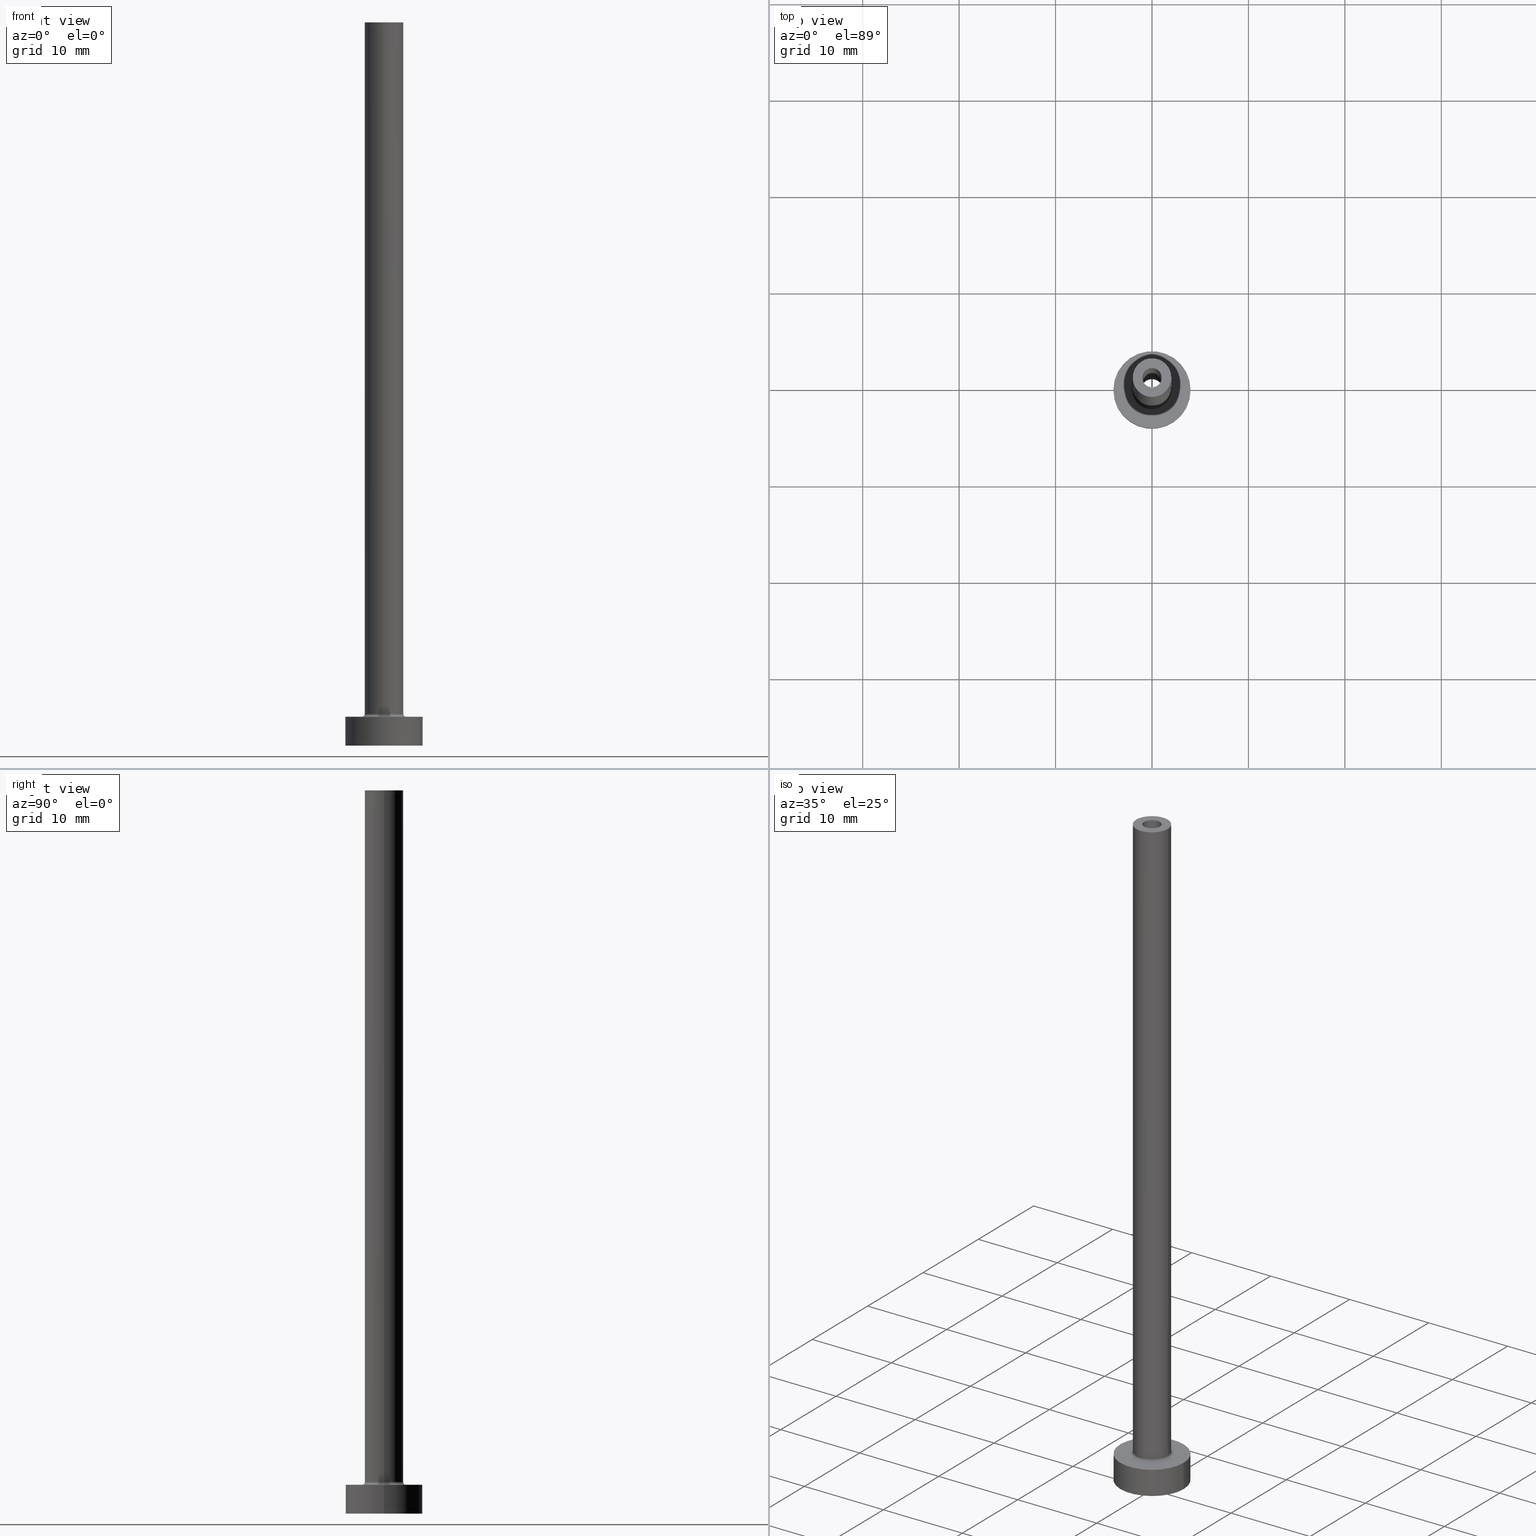
[diagram: canonical four-view strip — front | top / right | iso, engineering-drawing reading convention]
A machine part, canonical four-view strip (front | top / right | iso — engineering-drawing reading convention). The complete STEP part file that produces these views, byte-faithful:
ISO-10303-21;
HEADER;
FILE_DESCRIPTION (( 'STEP AP203' ),
    '1' );
FILE_NAME ('f873.STEP',
    '2023-02-13T12:51:36',
    ( '' ),
    ( '' ),
    'SwSTEP 2.0',
    'SolidWorks 2019',
    '' );
FILE_SCHEMA (( 'CONFIG_CONTROL_DESIGN' ));
ENDSEC;

DATA;
#1 = FACE_OUTER_BOUND ( 'NONE', #16, .T. ) ;
#2 = ORIENTED_EDGE ( 'NONE', *, *, #368, .T. ) ;
#3 = PLANE ( 'NONE',  #46 ) ;
#4 = CARTESIAN_POINT ( 'NONE',  ( 4.000000000000000000, 4.898587196589412829E-16, 3.000000000000000000 ) ) ;
#5 = DIRECTION ( 'NONE',  ( -0.000000000000000000, -0.000000000000000000, -1.000000000000000000 ) ) ;
#6 = APPROVAL ( #76, 'NEUR�EN�' ) ;
#7 = DIRECTION ( 'NONE',  ( 0.000000000000000000, -1.000000000000000000, 0.000000000000000000 ) ) ;
#8 = PRODUCT_DEFINITION_FORMATION_WITH_SPECIFIED_SOURCE ( 'LIBOVOLN�', '', #199, .NOT_KNOWN. ) ;
#9 = ORIENTED_EDGE ( 'NONE', *, *, #89, .T. ) ;
#10 = FACE_BOUND ( 'NONE', #97, .T. ) ;
#11 = CIRCLE ( 'NONE', #63, 4.000000000000000000 ) ;
#12 = ORIENTED_EDGE ( 'NONE', *, *, #433, .F. ) ;
#13 = ORIENTED_EDGE ( 'NONE', *, *, #433, .T. ) ;
#14 = CC_DESIGN_DATE_AND_TIME_ASSIGNMENT ( #183, #342, ( #138 ) ) ;
#15 = CARTESIAN_POINT ( 'NONE',  ( 0.000000000000000000, 0.000000000000000000, 75.00000000000001421 ) ) ;
#16 = EDGE_LOOP ( 'NONE', ( #318, #305, #113, #181 ) ) ;
#17 = EDGE_CURVE ( 'NONE', #239, #42, #237, .T. ) ;
#18 = AXIS2_PLACEMENT_3D ( 'NONE', #31, #402, #256 ) ;
#19 = FACE_OUTER_BOUND ( 'NONE', #240, .T. ) ;
#20 = CYLINDRICAL_SURFACE ( 'NONE', #129, 1.000000000000000000 ) ;
#21 = EDGE_LOOP ( 'NONE', ( #327, #115 ) ) ;
#22 = PERSON_AND_ORGANIZATION_ROLE ( 'design_supplier' ) ;
#23 = DIRECTION ( 'NONE',  ( 1.000000000000000000, 0.000000000000000000, 0.000000000000000000 ) ) ;
#24 = VERTEX_POINT ( 'NONE', #308 ) ;
#25 = ORIENTED_EDGE ( 'NONE', *, *, #110, .T. ) ;
#26 = CARTESIAN_POINT ( 'NONE',  ( -2.299999999999999822, 2.816687638038912056E-16, 2.999999999999998668 ) ) ;
#27 = CIRCLE ( 'NONE', #299, 4.000000000000000000 ) ;
#28 = FACE_OUTER_BOUND ( 'NONE', #379, .T. ) ;
#29 = ORIENTED_EDGE ( 'NONE', *, *, #30, .T. ) ;
#30 = EDGE_CURVE ( 'NONE', #326, #267, #80, .T. ) ;
#31 = CARTESIAN_POINT ( 'NONE',  ( 0.000000000000000000, 0.000000000000000000, 75.00000000000001421 ) ) ;
#32 = EDGE_CURVE ( 'NONE', #319, #88, #182, .T. ) ;
#33 = VECTOR ( 'NONE', #284, 1000.000000000000000 ) ;
#34 = CIRCLE ( 'NONE', #428, 1.000000000000000000 ) ;
#35 = CYLINDRICAL_SURFACE ( 'NONE', #344, 4.000000000000000000 ) ;
#36 = DIRECTION ( 'NONE',  ( 1.000000000000000000, 0.000000000000000000, -0.000000000000000000 ) ) ;
#37 = ADVANCED_FACE ( 'NONE', ( #410 ), #20, .F. ) ;
#38 = CIRCLE ( 'NONE', #374, 2.000000000000000000 ) ;
#39 = CARTESIAN_POINT ( 'NONE',  ( 1.149999999999999911, 1.408343819019456028E-16, 0.000000000000000000 ) ) ;
#40 = FACE_OUTER_BOUND ( 'NONE', #286, .T. ) ;
#41 = EDGE_CURVE ( 'NONE', #145, #411, #244, .T. ) ;
#42 = VERTEX_POINT ( 'NONE', #257 ) ;
#43 = DIRECTION ( 'NONE',  ( 1.000000000000000000, 0.000000000000000000, 0.000000000000000000 ) ) ;
#44 = DATE_AND_TIME ( #114, #187 ) ;
#45 = CARTESIAN_POINT ( 'NONE',  ( 0.000000000000000000, 0.000000000000000000, 40.00000000000000711 ) ) ;
#46 = AXIS2_PLACEMENT_3D ( 'NONE', #401, #71, #36 ) ;
#47 = CIRCLE ( 'NONE', #265, 1.149999999999999911 ) ;
#48 = DIRECTION ( 'NONE',  ( 0.000000000000000000, 0.000000000000000000, 1.000000000000000000 ) ) ;
#49 = PRODUCT_DEFINITION_SHAPE ( 'NONE', 'NONE',  #138 ) ;
#50 = DATE_TIME_ROLE ( 'classification_date' ) ;
#51 = ORIENTED_EDGE ( 'NONE', *, *, #53, .T. ) ;
#52 = APPROVAL_PERSON_ORGANIZATION ( #148, #372, #349 ) ;
#53 = EDGE_CURVE ( 'NONE', #367, #279, #94, .T. ) ;
#54 = ORIENTED_EDGE ( 'NONE', *, *, #272, .T. ) ;
#55 = DIRECTION ( 'NONE',  ( 0.000000000000000000, 0.000000000000000000, -1.000000000000000000 ) ) ;
#56 = ORIENTED_EDGE ( 'NONE', *, *, #356, .T. ) ;
#57 = ADVANCED_FACE ( 'NONE', ( #1 ), #70, .T. ) ;
#58 = LOCAL_TIME ( 13, 51, 36.00000000000000000, #117 ) ;
#59 = FACE_OUTER_BOUND ( 'NONE', #74, .T. ) ;
#60 = FACE_BOUND ( 'NONE', #362, .T. ) ;
#61 = APPLICATION_PROTOCOL_DEFINITION ( 'international standard', 'config_control_design', 1994, #164 ) ;
#62 = CARTESIAN_POINT ( 'NONE',  ( 0.000000000000000000, 0.000000000000000000, 40.00000000000000711 ) ) ;
#63 = AXIS2_PLACEMENT_3D ( 'NONE', #358, #459, #132 ) ;
#64 = CARTESIAN_POINT ( 'NONE',  ( 0.000000000000000000, 0.000000000000000000, 3.299999999999997158 ) ) ;
#65 = DIRECTION ( 'NONE',  ( -0.000000000000000000, -0.000000000000000000, -1.000000000000000000 ) ) ;
#66 = CARTESIAN_POINT ( 'NONE',  ( 0.000000000000000000, 0.000000000000000000, 43.25269119345811930 ) ) ;
#67 = ORIENTED_EDGE ( 'NONE', *, *, #272, .F. ) ;
#68 = PERSON_AND_ORGANIZATION_ROLE ( 'classification_officer' ) ;
#69 = DIRECTION ( 'NONE',  ( 0.000000000000000000, 0.000000000000000000, 1.000000000000000000 ) ) ;
#70 = CYLINDRICAL_SURFACE ( 'NONE', #160, 4.000000000000000000 ) ;
#71 = DIRECTION ( 'NONE',  ( 0.000000000000000000, 0.000000000000000000, 1.000000000000000000 ) ) ;
#72 = PERSON_AND_ORGANIZATION ( #345, #263 ) ;
#73 = DIRECTION ( 'NONE',  ( 1.000000000000000000, 0.000000000000000000, 0.000000000000000000 ) ) ;
#74 = EDGE_LOOP ( 'NONE', ( #315, #13, #276, #448 ) ) ;
#75 = DIRECTION ( 'NONE',  ( 1.000000000000000000, 0.000000000000000000, -0.000000000000000000 ) ) ;
#76 = APPROVAL_STATUS ( 'not_yet_approved' ) ;
#77 = EDGE_CURVE ( 'NONE', #411, #145, #38, .T. ) ;
#78 = CC_DESIGN_APPROVAL ( #79, ( #138 ) ) ;
#79 = APPROVAL ( #228, 'NEUR�EN�' ) ;
#80 = LINE ( 'NONE', #406, #357 ) ;
#81 = VERTEX_POINT ( 'NONE', #434 ) ;
#82 = CALENDAR_DATE ( 2023, 13, 2 ) ;
#83 = AXIS2_PLACEMENT_3D ( 'NONE', #423, #95, #246 ) ;
#84 = AXIS2_PLACEMENT_3D ( 'NONE', #387, #202, #206 ) ;
#85 = DIRECTION ( 'NONE',  ( 0.000000000000000000, 0.000000000000000000, -1.000000000000000000 ) ) ;
#86 = CALENDAR_DATE ( 2023, 13, 2 ) ;
#87 = DIRECTION ( 'NONE',  ( 0.000000000000000000, 0.000000000000000000, -1.000000000000000000 ) ) ;
#88 = VERTEX_POINT ( 'NONE', #108 ) ;
#89 = EDGE_CURVE ( 'NONE', #214, #185, #220, .T. ) ;
#90 = ORIENTED_EDGE ( 'NONE', *, *, #192, .T. ) ;
#91 = ORIENTED_EDGE ( 'NONE', *, *, #41, .T. ) ;
#92 = CARTESIAN_POINT ( 'NONE',  ( 4.000000000000000000, 4.898587196589412829E-16, 0.000000000000000000 ) ) ;
#93 = CARTESIAN_POINT ( 'NONE',  ( -1.149999999999999911, 0.000000000000000000, 40.00000000000000711 ) ) ;
#94 = CIRCLE ( 'NONE', #161, 2.299999999999999822 ) ;
#95 = DIRECTION ( 'NONE',  ( -0.000000000000000000, -0.000000000000000000, -1.000000000000000000 ) ) ;
#96 = CC_DESIGN_PERSON_AND_ORGANIZATION_ASSIGNMENT ( #190, #22, ( #8 ) ) ;
#97 = EDGE_LOOP ( 'NONE', ( #169, #277 ) ) ;
#98 = DATE_AND_TIME ( #86, #58 ) ;
#99 = AXIS2_PLACEMENT_3D ( 'NONE', #111, #404, #75 ) ;
#100 = DIRECTION ( 'NONE',  ( 1.000000000000000000, 0.000000000000000000, 0.000000000000000000 ) ) ;
#101 = VERTEX_POINT ( 'NONE', #39 ) ;
#102 = CYLINDRICAL_SURFACE ( 'NONE', #157, 2.000000000000000000 ) ;
#103 = EDGE_LOOP ( 'NONE', ( #156, #25, #135, #159 ) ) ;
#104 = EDGE_CURVE ( 'NONE', #145, #367, #287, .T. ) ;
#105 = DIRECTION ( 'NONE',  ( 1.224646799147353207E-16, 1.000000000000000000, -0.000000000000000000 ) ) ;
#106 = CARTESIAN_POINT ( 'NONE',  ( 2.000000000000000000, 2.449293598294706414E-16, 3.299999999999997158 ) ) ;
#107 = CIRCLE ( 'NONE', #460, 2.000000000000000000 ) ;
#108 = CARTESIAN_POINT ( 'NONE',  ( 1.149999999999999911, 1.408343819019456028E-16, 40.00000000000000711 ) ) ;
#109 = DIRECTION ( 'NONE',  ( 0.000000000000000000, 0.000000000000000000, 1.000000000000000000 ) ) ;
#110 = EDGE_CURVE ( 'NONE', #81, #341, #300, .T. ) ;
#111 = CARTESIAN_POINT ( 'NONE',  ( 0.000000000000000000, 0.000000000000000000, 0.000000000000000000 ) ) ;
#112 = CARTESIAN_POINT ( 'NONE',  ( 0.000000000000000000, 0.000000000000000000, 3.000000000000000000 ) ) ;
#113 = ORIENTED_EDGE ( 'NONE', *, *, #184, .T. ) ;
#114 = CALENDAR_DATE ( 2023, 13, 2 ) ;
#115 = ORIENTED_EDGE ( 'NONE', *, *, #359, .F. ) ;
#116 = DIRECTION ( 'NONE',  ( -0.000000000000000000, -0.000000000000000000, -1.000000000000000000 ) ) ;
#117 = COORDINATED_UNIVERSAL_TIME_OFFSET ( 1, 0, .AHEAD. ) ;
#118 = ORIENTED_EDGE ( 'NONE', *, *, #310, .T. ) ;
#119 = DIRECTION ( 'NONE',  ( 1.000000000000000000, 0.000000000000000000, 0.000000000000000000 ) ) ;
#120 = CC_DESIGN_PERSON_AND_ORGANIZATION_ASSIGNMENT ( #72, #442, ( #138 ) ) ;
#121 = PERSON_AND_ORGANIZATION ( #345, #263 ) ;
#122 = CYLINDRICAL_SURFACE ( 'NONE', #222, 1.149999999999999911 ) ;
#123 = CC_DESIGN_APPROVAL ( #6, ( #8 ) ) ;
#124 = EDGE_CURVE ( 'NONE', #456, #101, #47, .T. ) ;
#125 = AXIS2_PLACEMENT_3D ( 'NONE', #320, #173, #211 ) ;
#126 = CARTESIAN_POINT ( 'NONE',  ( -1.149999999999999911, 0.000000000000000000, 43.25269119345811930 ) ) ;
#127 = PLANE ( 'NONE',  #352 ) ;
#128 = LINE ( 'NONE', #451, #376 ) ;
#129 = AXIS2_PLACEMENT_3D ( 'NONE', #15, #413, #432 ) ;
#130 = CIRCLE ( 'NONE', #232, 2.299999999999999822 ) ;
#131 = FACE_OUTER_BOUND ( 'NONE', #409, .T. ) ;
#132 = DIRECTION ( 'NONE',  ( 1.000000000000000000, 0.000000000000000000, 0.000000000000000000 ) ) ;
#133 = VECTOR ( 'NONE', #248, 1000.000000000000000 ) ;
#134 = CARTESIAN_POINT ( 'NONE',  ( 0.000000000000000000, 0.000000000000000000, 0.000000000000000000 ) ) ;
#135 = ORIENTED_EDGE ( 'NONE', *, *, #192, .F. ) ;
#136 = ADVANCED_FACE ( 'NONE', ( #253 ), #395, .F. ) ;
#137 = PERSON_AND_ORGANIZATION ( #345, #263 ) ;
#138 = PRODUCT_DEFINITION ( 'NEZN�M�', '', #8, #393 ) ;
#139 = CARTESIAN_POINT ( 'NONE',  ( 0.000000000000000000, 0.000000000000000000, 3.299999999999997158 ) ) ;
#140 = EDGE_CURVE ( 'NONE', #239, #209, #288, .T. ) ;
#141 = AXIS2_PLACEMENT_3D ( 'NONE', #62, #443, #73 ) ;
#142 = DIRECTION ( 'NONE',  ( 0.000000000000000000, 0.000000000000000000, -1.000000000000000000 ) ) ;
#143 = CIRCLE ( 'NONE', #441, 1.000000000000000000 ) ;
#144 = DIRECTION ( 'NONE',  ( 1.000000000000000000, 0.000000000000000000, 0.000000000000000000 ) ) ;
#145 = VERTEX_POINT ( 'NONE', #106 ) ;
#146 = APPLICATION_CONTEXT ( 'configuration controlled 3d designs of mechanical parts and assemblies' ) ;
#147 = AXIS2_PLACEMENT_3D ( 'NONE', #309, #109, #234 ) ;
#148 = PERSON_AND_ORGANIZATION ( #345, #263 ) ;
#149 = ORIENTED_EDGE ( 'NONE', *, *, #450, .T. ) ;
#150 = ORIENTED_EDGE ( 'NONE', *, *, #104, .T. ) ;
#151 = ORIENTED_EDGE ( 'NONE', *, *, #317, .F. ) ;
#152 = ADVANCED_FACE ( 'NONE', ( #425 ), #235, .F. ) ;
#153 = COORDINATED_UNIVERSAL_TIME_OFFSET ( 1, 0, .AHEAD. ) ;
#154 = AXIS2_PLACEMENT_3D ( 'NONE', #221, #337, #144 ) ;
#155 = CARTESIAN_POINT ( 'NONE',  ( 0.000000000000000000, 0.000000000000000000, 75.00000000000001421 ) ) ;
#156 = ORIENTED_EDGE ( 'NONE', *, *, #179, .T. ) ;
#157 = AXIS2_PLACEMENT_3D ( 'NONE', #396, #353, #281 ) ;
#158 = CC_DESIGN_PERSON_AND_ORGANIZATION_ASSIGNMENT ( #137, #296, ( #199 ) ) ;
#159 = ORIENTED_EDGE ( 'NONE', *, *, #30, .F. ) ;
#160 = AXIS2_PLACEMENT_3D ( 'NONE', #177, #330, #333 ) ;
#161 = AXIS2_PLACEMENT_3D ( 'NONE', #400, #294, #334 ) ;
#162 = SECURITY_CLASSIFICATION_LEVEL ( 'unclassified' ) ;
#163 = ADVANCED_BREP_SHAPE_REPRESENTATION ( 'f873', ( #348, #258 ), #435 ) ;
#164 = APPLICATION_CONTEXT ( 'configuration controlled 3d designs of mechanical parts and assemblies' ) ;
#165 = CIRCLE ( 'NONE', #154, 1.000000000000000000 ) ;
#166 = CARTESIAN_POINT ( 'NONE',  ( -1.000000000000000000, 0.000000000000000000, 75.00000000000001421 ) ) ;
#167 = DIRECTION ( 'NONE',  ( -0.000000000000000000, -0.000000000000000000, -1.000000000000000000 ) ) ;
#168 = CLOSED_SHELL ( 'NONE', ( #407, #136, #219, #338, #57, #225, #340, #255, #250, #297, #152, #385, #440, #37 ) ) ;
#169 = ORIENTED_EDGE ( 'NONE', *, *, #124, .F. ) ;
#170 = CARTESIAN_POINT ( 'NONE',  ( 1.000000000000000000, 1.224646799147353207E-16, 75.00000000000001421 ) ) ;
#171 = CARTESIAN_POINT ( 'NONE',  ( 0.000000000000000000, 0.000000000000000000, 3.000000000000000000 ) ) ;
#172 = CARTESIAN_POINT ( 'NONE',  ( 0.000000000000000000, 0.000000000000000000, 75.00000000000001421 ) ) ;
#173 = DIRECTION ( 'NONE',  ( 0.000000000000000000, 0.000000000000000000, 1.000000000000000000 ) ) ;
#174 =( NAMED_UNIT ( * ) PLANE_ANGLE_UNIT ( ) SI_UNIT ( $, .RADIAN. ) );
#175 = CC_DESIGN_APPROVAL ( #372, ( #273 ) ) ;
#176 = DIRECTION ( 'NONE',  ( 0.000000000000000000, 0.000000000000000000, 1.000000000000000000 ) ) ;
#177 = CARTESIAN_POINT ( 'NONE',  ( 0.000000000000000000, 0.000000000000000000, 3.000000000000000000 ) ) ;
#178 = APPROVAL_DATE_TIME ( #264, #79 ) ;
#179 = EDGE_CURVE ( 'NONE', #326, #81, #143, .T. ) ;
#180 = AXIS2_PLACEMENT_3D ( 'NONE', #366, #105, #208 ) ;
#181 = ORIENTED_EDGE ( 'NONE', *, *, #455, .F. ) ;
#182 = CIRCLE ( 'NONE', #408, 1.149999999999999911 ) ;
#183 = DATE_AND_TIME ( #268, #370 ) ;
#184 = EDGE_CURVE ( 'NONE', #209, #24, #27, .T. ) ;
#185 = VERTEX_POINT ( 'NONE', #416 ) ;
#186 = ORIENTED_EDGE ( 'NONE', *, *, #77, .T. ) ;
#187 = LOCAL_TIME ( 13, 51, 36.00000000000000000, #449 ) ;
#188 = DIRECTION ( 'NONE',  ( 0.000000000000000000, 0.000000000000000000, 1.000000000000000000 ) ) ;
#189 = ORIENTED_EDGE ( 'NONE', *, *, #140, .F. ) ;
#190 = PERSON_AND_ORGANIZATION ( #345, #263 ) ;
#191 = EDGE_LOOP ( 'NONE', ( #54, #205 ) ) ;
#192 = EDGE_CURVE ( 'NONE', #267, #341, #241, .T. ) ;
#193 = APPROVAL_ROLE ( '' ) ;
#194 = ORIENTED_EDGE ( 'NONE', *, *, #124, .T. ) ;
#195 = ORIENTED_EDGE ( 'NONE', *, *, #204, .T. ) ;
#196 = DATE_AND_TIME ( #82, #210 ) ;
#197 = AXIS2_PLACEMENT_3D ( 'NONE', #421, #167, #461 ) ;
#198 = ORIENTED_EDGE ( 'NONE', *, *, #110, .F. ) ;
#199 = PRODUCT ( 'f873', 'f873', '', ( #216 ) ) ;
#200 = PERSON_AND_ORGANIZATION ( #345, #263 ) ;
#201 = CARTESIAN_POINT ( 'NONE',  ( -2.000000000000000000, 0.000000000000000000, 75.00000000000001421 ) ) ;
#202 = DIRECTION ( 'NONE',  ( 0.000000000000000000, 0.000000000000000000, 1.000000000000000000 ) ) ;
#203 = DIRECTION ( 'NONE',  ( 0.000000000000000000, 0.000000000000000000, 1.000000000000000000 ) ) ;
#204 = EDGE_CURVE ( 'NONE', #341, #267, #34, .T. ) ;
#205 = ORIENTED_EDGE ( 'NONE', *, *, #17, .T. ) ;
#206 = DIRECTION ( 'NONE',  ( 1.000000000000000000, 0.000000000000000000, 0.000000000000000000 ) ) ;
#207 = DIRECTION ( 'NONE',  ( 1.000000000000000000, 0.000000000000000000, -0.000000000000000000 ) ) ;
#208 = DIRECTION ( 'NONE',  ( -1.000000000000000000, 1.224646799147353207E-16, 0.000000000000000000 ) ) ;
#209 = VERTEX_POINT ( 'NONE', #92 ) ;
#210 = LOCAL_TIME ( 13, 51, 36.00000000000000000, #153 ) ;
#211 = DIRECTION ( 'NONE',  ( 1.000000000000000000, 0.000000000000000000, 0.000000000000000000 ) ) ;
#212 = CARTESIAN_POINT ( 'NONE',  ( 0.000000000000000000, 0.000000000000000000, 40.00000000000000711 ) ) ;
#213 = DIRECTION ( 'NONE',  ( 1.000000000000000000, 0.000000000000000000, 0.000000000000000000 ) ) ;
#214 = VERTEX_POINT ( 'NONE', #389 ) ;
#215 = DIRECTION ( 'NONE',  ( 0.000000000000000000, 0.000000000000000000, -1.000000000000000000 ) ) ;
#216 = MECHANICAL_CONTEXT ( 'NONE', #164, 'mechanical' ) ;
#217 = VECTOR ( 'NONE', #55, 1000.000000000000000 ) ;
#218 =( NAMED_UNIT ( * ) SI_UNIT ( $, .STERADIAN. ) SOLID_ANGLE_UNIT ( ) );
#219 = ADVANCED_FACE ( 'NONE', ( #59 ), #392, .F. ) ;
#220 = CIRCLE ( 'NONE', #18, 2.000000000000000000 ) ;
#221 = CARTESIAN_POINT ( 'NONE',  ( 0.000000000000000000, 0.000000000000000000, 75.00000000000001421 ) ) ;
#222 = AXIS2_PLACEMENT_3D ( 'NONE', #446, #85, #236 ) ;
#223 = AXIS2_PLACEMENT_3D ( 'NONE', #245, #203, #207 ) ;
#224 = DIRECTION ( 'NONE',  ( 0.000000000000000000, 0.000000000000000000, 1.000000000000000000 ) ) ;
#225 = ADVANCED_FACE ( 'NONE', ( #40 ), #35, .T. ) ;
#226 = CALENDAR_DATE ( 2023, 13, 2 ) ;
#227 = ORIENTED_EDGE ( 'NONE', *, *, #89, .F. ) ;
#228 = APPROVAL_STATUS ( 'not_yet_approved' ) ;
#229 = DIRECTION ( 'NONE',  ( 0.000000000000000000, 0.000000000000000000, -1.000000000000000000 ) ) ;
#230 = ORIENTED_EDGE ( 'NONE', *, *, #359, .T. ) ;
#231 = APPROVAL_DATE_TIME ( #196, #6 ) ;
#232 = AXIS2_PLACEMENT_3D ( 'NONE', #238, #116, #275 ) ;
#233 = ORIENTED_EDGE ( 'NONE', *, *, #397, .T. ) ;
#234 = DIRECTION ( 'NONE',  ( 1.000000000000000000, 0.000000000000000000, 0.000000000000000000 ) ) ;
#235 = TOROIDAL_SURFACE ( 'NONE', #147, 2.299999999999999822, 0.2999999999999999889 ) ;
#236 = DIRECTION ( 'NONE',  ( -1.000000000000000000, 0.000000000000000000, 0.000000000000000000 ) ) ;
#237 = CIRCLE ( 'NONE', #302, 4.000000000000000000 ) ;
#238 = CARTESIAN_POINT ( 'NONE',  ( 0.000000000000000000, 0.000000000000000000, 3.000000000000000000 ) ) ;
#239 = VERTEX_POINT ( 'NONE', #4 ) ;
#240 = EDGE_LOOP ( 'NONE', ( #417, #56, #270, #194 ) ) ;
#241 = CIRCLE ( 'NONE', #84, 1.000000000000000000 ) ;
#242 = FACE_OUTER_BOUND ( 'NONE', #103, .T. ) ;
#243 = ORIENTED_EDGE ( 'NONE', *, *, #414, .T. ) ;
#244 = CIRCLE ( 'NONE', #365, 2.000000000000000000 ) ;
#245 = CARTESIAN_POINT ( 'NONE',  ( 0.000000000000000000, 0.000000000000000000, 75.00000000000001421 ) ) ;
#246 = DIRECTION ( 'NONE',  ( -1.000000000000000000, 0.000000000000000000, 0.000000000000000000 ) ) ;
#247 = DIRECTION ( 'NONE',  ( 1.000000000000000000, 0.000000000000000000, -0.000000000000000000 ) ) ;
#248 = DIRECTION ( 'NONE',  ( 0.000000000000000000, 0.000000000000000000, -1.000000000000000000 ) ) ;
#249 = ORIENTED_EDGE ( 'NONE', *, *, #368, .F. ) ;
#250 = ADVANCED_FACE ( 'NONE', ( #131 ), #102, .T. ) ;
#251 = AXIS2_PLACEMENT_3D ( 'NONE', #64, #373, #335 ) ;
#252 = LINE ( 'NONE', #430, #295 ) ;
#253 = FACE_OUTER_BOUND ( 'NONE', #266, .T. ) ;
#254 = APPROVAL_DATE_TIME ( #98, #372 ) ;
#255 = ADVANCED_FACE ( 'NONE', ( #10, #301 ), #339, .F. ) ;
#256 = DIRECTION ( 'NONE',  ( 1.000000000000000000, 0.000000000000000000, 0.000000000000000000 ) ) ;
#257 = CARTESIAN_POINT ( 'NONE',  ( -4.000000000000000000, 0.000000000000000000, 3.000000000000000000 ) ) ;
#258 = AXIS2_PLACEMENT_3D ( 'NONE', #292, #176, #213 ) ;
#259 = DIRECTION ( 'NONE',  ( 0.000000000000000000, 0.000000000000000000, 1.000000000000000000 ) ) ;
#260 = DIRECTION ( 'NONE',  ( 1.000000000000000000, 0.000000000000000000, 0.000000000000000000 ) ) ;
#261 = APPLICATION_PROTOCOL_DEFINITION ( 'international standard', 'config_control_design', 1994, #146 ) ;
#262 = APPROVAL_ROLE ( '' ) ;
#263 = ORGANIZATION ( 'NEUR�EN�', 'NEUR�EN�', '' ) ;
#264 = DATE_AND_TIME ( #226, #298 ) ;
#265 = AXIS2_PLACEMENT_3D ( 'NONE', #134, #457, #100 ) ;
#266 = EDGE_LOOP ( 'NONE', ( #444, #243, #149, #151 ) ) ;
#267 = VERTEX_POINT ( 'NONE', #322 ) ;
#268 = CALENDAR_DATE ( 2023, 13, 2 ) ;
#269 = EDGE_LOOP ( 'NONE', ( #227, #118, #91, #249 ) ) ;
#270 = ORIENTED_EDGE ( 'NONE', *, *, #317, .T. ) ;
#271 = DIRECTION ( 'NONE',  ( 1.000000000000000000, 0.000000000000000000, 0.000000000000000000 ) ) ;
#272 = EDGE_CURVE ( 'NONE', #42, #239, #282, .T. ) ;
#273 = SECURITY_CLASSIFICATION ( '', '', #162 ) ;
#274 = CC_DESIGN_PERSON_AND_ORGANIZATION_ASSIGNMENT ( #200, #355, ( #8 ) ) ;
#275 = DIRECTION ( 'NONE',  ( 1.000000000000000000, 0.000000000000000000, 0.000000000000000000 ) ) ;
#276 = ORIENTED_EDGE ( 'NONE', *, *, #53, .F. ) ;
#277 = ORIENTED_EDGE ( 'NONE', *, *, #450, .F. ) ;
#278 = LINE ( 'NONE', #201, #439 ) ;
#279 = VERTEX_POINT ( 'NONE', #26 ) ;
#280 = DIRECTION ( 'NONE',  ( 0.000000000000000000, 0.000000000000000000, 1.000000000000000000 ) ) ;
#281 = DIRECTION ( 'NONE',  ( -1.000000000000000000, 0.000000000000000000, 0.000000000000000000 ) ) ;
#282 = CIRCLE ( 'NONE', #125, 4.000000000000000000 ) ;
#283 = CARTESIAN_POINT ( 'NONE',  ( 0.000000000000000000, 0.000000000000000000, 40.00000000000000711 ) ) ;
#284 = DIRECTION ( 'NONE',  ( 0.000000000000000000, 0.000000000000000000, -1.000000000000000000 ) ) ;
#285 = CARTESIAN_POINT ( 'NONE',  ( 1.149999999999999911, 1.408343819019456028E-16, 43.25269119345811930 ) ) ;
#286 = EDGE_LOOP ( 'NONE', ( #189, #67, #332, #453 ) ) ;
#287 = CIRCLE ( 'NONE', #403, 0.2999999999999999334 ) ;
#288 = LINE ( 'NONE', #291, #436 ) ;
#289 = CYLINDRICAL_SURFACE ( 'NONE', #83, 2.000000000000000000 ) ;
#290 = EDGE_LOOP ( 'NONE', ( #90, #195 ) ) ;
#291 = CARTESIAN_POINT ( 'NONE',  ( 4.000000000000000000, 4.898587196589412829E-16, 3.000000000000000000 ) ) ;
#292 = CARTESIAN_POINT ( 'NONE',  ( 0.000000000000000000, 0.000000000000000000, 0.000000000000000000 ) ) ;
#293 = ORIENTED_EDGE ( 'NONE', *, *, #41, .F. ) ;
#294 = DIRECTION ( 'NONE',  ( -0.000000000000000000, -0.000000000000000000, -1.000000000000000000 ) ) ;
#295 = VECTOR ( 'NONE', #65, 1000.000000000000000 ) ;
#296 = PERSON_AND_ORGANIZATION_ROLE ( 'design_owner' ) ;
#297 = ADVANCED_FACE ( 'NONE', ( #398, #390 ), #329, .T. ) ;
#298 = LOCAL_TIME ( 13, 51, 36.00000000000000000, #375 ) ;
#299 = AXIS2_PLACEMENT_3D ( 'NONE', #351, #224, #271 ) ;
#300 = LINE ( 'NONE', #170, #133 ) ;
#301 = FACE_OUTER_BOUND ( 'NONE', #427, .T. ) ;
#302 = AXIS2_PLACEMENT_3D ( 'NONE', #112, #382, #43 ) ;
#303 = PERSON_AND_ORGANIZATION ( #345, #263 ) ;
#304 = EDGE_CURVE ( 'NONE', #24, #209, #11, .T. ) ;
#305 = ORIENTED_EDGE ( 'NONE', *, *, #140, .T. ) ;
#306 = APPROVAL_PERSON_ORGANIZATION ( #303, #79, #262 ) ;
#307 = PERSON_AND_ORGANIZATION ( #345, #263 ) ;
#308 = CARTESIAN_POINT ( 'NONE',  ( -4.000000000000000000, 0.000000000000000000, 0.000000000000000000 ) ) ;
#309 = CARTESIAN_POINT ( 'NONE',  ( 0.000000000000000000, 0.000000000000000000, 3.299999999999997158 ) ) ;
#310 = EDGE_CURVE ( 'NONE', #214, #145, #128, .T. ) ;
#311 = ORIENTED_EDGE ( 'NONE', *, *, #397, .F. ) ;
#312 = SHAPE_DEFINITION_REPRESENTATION ( #49, #163 ) ;
#313 = ORIENTED_EDGE ( 'NONE', *, *, #310, .F. ) ;
#314 = CYLINDRICAL_SURFACE ( 'NONE', #343, 1.000000000000000000 ) ;
#315 = ORIENTED_EDGE ( 'NONE', *, *, #77, .F. ) ;
#316 = CARTESIAN_POINT ( 'NONE',  ( 2.299999999999999822, 0.000000000000000000, 2.999999999999998668 ) ) ;
#317 = EDGE_CURVE ( 'NONE', #319, #456, #420, .T. ) ;
#318 = ORIENTED_EDGE ( 'NONE', *, *, #17, .F. ) ;
#319 = VERTEX_POINT ( 'NONE', #93 ) ;
#320 = CARTESIAN_POINT ( 'NONE',  ( 0.000000000000000000, 0.000000000000000000, 3.000000000000000000 ) ) ;
#321 = AXIS2_PLACEMENT_3D ( 'NONE', #66, #215, #437 ) ;
#322 = CARTESIAN_POINT ( 'NONE',  ( -1.000000000000000000, 0.000000000000000000, 40.00000000000000711 ) ) ;
#323 = FACE_OUTER_BOUND ( 'NONE', #269, .T. ) ;
#324 = CARTESIAN_POINT ( 'NONE',  ( -1.149999999999999911, 0.000000000000000000, 0.000000000000000000 ) ) ;
#325 = FACE_OUTER_BOUND ( 'NONE', #191, .T. ) ;
#326 = VERTEX_POINT ( 'NONE', #166 ) ;
#327 = ORIENTED_EDGE ( 'NONE', *, *, #179, .F. ) ;
#328 = DIRECTION ( 'NONE',  ( -0.000000000000000000, -0.000000000000000000, -1.000000000000000000 ) ) ;
#329 = PLANE ( 'NONE',  #223 ) ;
#330 = DIRECTION ( 'NONE',  ( -0.000000000000000000, -0.000000000000000000, -1.000000000000000000 ) ) ;
#331 = CC_DESIGN_SECURITY_CLASSIFICATION ( #273, ( #8 ) ) ;
#332 = ORIENTED_EDGE ( 'NONE', *, *, #455, .T. ) ;
#333 = DIRECTION ( 'NONE',  ( -1.000000000000000000, 0.000000000000000000, 0.000000000000000000 ) ) ;
#334 = DIRECTION ( 'NONE',  ( 1.000000000000000000, 0.000000000000000000, 0.000000000000000000 ) ) ;
#335 = DIRECTION ( 'NONE',  ( 1.000000000000000000, 0.000000000000000000, 0.000000000000000000 ) ) ;
#336 = CARTESIAN_POINT ( 'NONE',  ( 0.000000000000000000, 0.000000000000000000, 3.299999999999997158 ) ) ;
#337 = DIRECTION ( 'NONE',  ( 0.000000000000000000, 0.000000000000000000, 1.000000000000000000 ) ) ;
#338 = ADVANCED_FACE ( 'NONE', ( #323 ), #289, .T. ) ;
#339 = PLANE ( 'NONE',  #99 ) ;
#340 = ADVANCED_FACE ( 'NONE', ( #60, #325 ), #3, .T. ) ;
#341 = VERTEX_POINT ( 'NONE', #454 ) ;
#342 = DATE_TIME_ROLE ( 'creation_date' ) ;
#343 = AXIS2_PLACEMENT_3D ( 'NONE', #415, #87, #418 ) ;
#344 = AXIS2_PLACEMENT_3D ( 'NONE', #171, #328, #458 ) ;
#345 = PERSON ( 'NEUR�EN�', 'NEUR�EN�', 'NEUR�EN�', ('NEUR�EN�'), ('NEUR�EN�'), ('NEUR�EN�') ) ;
#346 = DIRECTION ( 'NONE',  ( 1.000000000000000000, 0.000000000000000000, 0.000000000000000000 ) ) ;
#347 = ORIENTED_EDGE ( 'NONE', *, *, #204, .F. ) ;
#348 = MANIFOLD_SOLID_BREP ( 'Odebrat vysunut�m4', #168 ) ;
#349 = APPROVAL_ROLE ( '' ) ;
#350 = ORIENTED_EDGE ( 'NONE', *, *, #304, .F. ) ;
#351 = CARTESIAN_POINT ( 'NONE',  ( 0.000000000000000000, 0.000000000000000000, 0.000000000000000000 ) ) ;
#352 = AXIS2_PLACEMENT_3D ( 'NONE', #212, #69, #247 ) ;
#353 = DIRECTION ( 'NONE',  ( -0.000000000000000000, -0.000000000000000000, -1.000000000000000000 ) ) ;
#354 = LINE ( 'NONE', #285, #217 ) ;
#355 = PERSON_AND_ORGANIZATION_ROLE ( 'creator' ) ;
#356 = EDGE_CURVE ( 'NONE', #88, #319, #360, .T. ) ;
#357 = VECTOR ( 'NONE', #229, 1000.000000000000000 ) ;
#358 = CARTESIAN_POINT ( 'NONE',  ( 0.000000000000000000, 0.000000000000000000, 0.000000000000000000 ) ) ;
#359 = EDGE_CURVE ( 'NONE', #81, #326, #165, .T. ) ;
#360 = CIRCLE ( 'NONE', #141, 1.149999999999999911 ) ;
#361 = FACE_BOUND ( 'NONE', #290, .T. ) ;
#362 = EDGE_LOOP ( 'NONE', ( #51, #233 ) ) ;
#363 =( LENGTH_UNIT ( ) NAMED_UNIT ( * ) SI_UNIT ( .MILLI., .METRE. ) );
#364 = DIRECTION ( 'NONE',  ( 1.000000000000000000, 0.000000000000000000, 0.000000000000000000 ) ) ;
#365 = AXIS2_PLACEMENT_3D ( 'NONE', #139, #259, #369 ) ;
#366 = CARTESIAN_POINT ( 'NONE',  ( -2.299999999999999822, 2.816687638038912056E-16, 3.299999999999997158 ) ) ;
#367 = VERTEX_POINT ( 'NONE', #316 ) ;
#368 = EDGE_CURVE ( 'NONE', #185, #411, #278, .T. ) ;
#369 = DIRECTION ( 'NONE',  ( 1.000000000000000000, 0.000000000000000000, 0.000000000000000000 ) ) ;
#370 = LOCAL_TIME ( 13, 51, 36.00000000000000000, #377 ) ;
#371 = DIRECTION ( 'NONE',  ( 0.000000000000000000, 0.000000000000000000, 1.000000000000000000 ) ) ;
#372 = APPROVAL ( #380, 'NEUR�EN�' ) ;
#373 = DIRECTION ( 'NONE',  ( 0.000000000000000000, 0.000000000000000000, 1.000000000000000000 ) ) ;
#374 = AXIS2_PLACEMENT_3D ( 'NONE', #336, #371, #364 ) ;
#375 = COORDINATED_UNIVERSAL_TIME_OFFSET ( 1, 0, .AHEAD. ) ;
#376 = VECTOR ( 'NONE', #429, 1000.000000000000000 ) ;
#377 = COORDINATED_UNIVERSAL_TIME_OFFSET ( 1, 0, .AHEAD. ) ;
#378 = ORIENTED_EDGE ( 'NONE', *, *, #184, .F. ) ;
#379 = EDGE_LOOP ( 'NONE', ( #394, #384 ) ) ;
#380 = APPROVAL_STATUS ( 'not_yet_approved' ) ;
#381 = DIRECTION ( 'NONE',  ( -0.000000000000000000, -0.000000000000000000, -1.000000000000000000 ) ) ;
#382 = DIRECTION ( 'NONE',  ( 0.000000000000000000, 0.000000000000000000, 1.000000000000000000 ) ) ;
#383 = EDGE_CURVE ( 'NONE', #185, #214, #107, .T. ) ;
#384 = ORIENTED_EDGE ( 'NONE', *, *, #356, .F. ) ;
#385 = ADVANCED_FACE ( 'NONE', ( #19 ), #122, .F. ) ;
#386 = CARTESIAN_POINT ( 'NONE',  ( -2.000000000000000000, 0.000000000000000000, 3.299999999999997158 ) ) ;
#387 = CARTESIAN_POINT ( 'NONE',  ( 0.000000000000000000, 0.000000000000000000, 40.00000000000000711 ) ) ;
#388 = EDGE_LOOP ( 'NONE', ( #422, #9 ) ) ;
#389 = CARTESIAN_POINT ( 'NONE',  ( 2.000000000000000000, 2.449293598294706414E-16, 75.00000000000001421 ) ) ;
#390 = FACE_OUTER_BOUND ( 'NONE', #388, .T. ) ;
#391 = EDGE_LOOP ( 'NONE', ( #12, #293, #150, #311 ) ) ;
#392 = TOROIDAL_SURFACE ( 'NONE', #251, 2.299999999999999822, 0.2999999999999999889 ) ;
#393 = DESIGN_CONTEXT ( 'detailed design', #146, 'design' ) ;
#394 = ORIENTED_EDGE ( 'NONE', *, *, #32, .F. ) ;
#395 = CYLINDRICAL_SURFACE ( 'NONE', #321, 1.149999999999999911 ) ;
#396 = CARTESIAN_POINT ( 'NONE',  ( 0.000000000000000000, 0.000000000000000000, 75.00000000000001421 ) ) ;
#397 = EDGE_CURVE ( 'NONE', #279, #367, #130, .T. ) ;
#398 = FACE_BOUND ( 'NONE', #21, .T. ) ;
#399 = CARTESIAN_POINT ( 'NONE',  ( 2.299999999999999822, 0.000000000000000000, 3.299999999999997158 ) ) ;
#400 = CARTESIAN_POINT ( 'NONE',  ( 0.000000000000000000, 0.000000000000000000, 3.000000000000000000 ) ) ;
#401 = CARTESIAN_POINT ( 'NONE',  ( 0.000000000000000000, 0.000000000000000000, 3.000000000000000000 ) ) ;
#402 = DIRECTION ( 'NONE',  ( 0.000000000000000000, 0.000000000000000000, 1.000000000000000000 ) ) ;
#403 = AXIS2_PLACEMENT_3D ( 'NONE', #399, #7, #142 ) ;
#404 = DIRECTION ( 'NONE',  ( 0.000000000000000000, 0.000000000000000000, 1.000000000000000000 ) ) ;
#405 = APPROVAL_PERSON_ORGANIZATION ( #307, #6, #193 ) ;
#406 = CARTESIAN_POINT ( 'NONE',  ( -1.000000000000000000, 0.000000000000000000, 75.00000000000001421 ) ) ;
#407 = ADVANCED_FACE ( 'NONE', ( #242 ), #314, .F. ) ;
#408 = AXIS2_PLACEMENT_3D ( 'NONE', #45, #188, #346 ) ;
#409 = EDGE_LOOP ( 'NONE', ( #313, #438, #2, #186 ) ) ;
#410 = FACE_OUTER_BOUND ( 'NONE', #447, .T. ) ;
#411 = VERTEX_POINT ( 'NONE', #386 ) ;
#412 = CIRCLE ( 'NONE', #197, 1.149999999999999911 ) ;
#413 = DIRECTION ( 'NONE',  ( 0.000000000000000000, 0.000000000000000000, -1.000000000000000000 ) ) ;
#414 = EDGE_CURVE ( 'NONE', #88, #101, #354, .T. ) ;
#415 = CARTESIAN_POINT ( 'NONE',  ( 0.000000000000000000, 0.000000000000000000, 75.00000000000001421 ) ) ;
#416 = CARTESIAN_POINT ( 'NONE',  ( -2.000000000000000000, 0.000000000000000000, 75.00000000000001421 ) ) ;
#417 = ORIENTED_EDGE ( 'NONE', *, *, #414, .F. ) ;
#418 = DIRECTION ( 'NONE',  ( -1.000000000000000000, 0.000000000000000000, 0.000000000000000000 ) ) ;
#419 = DIRECTION ( 'NONE',  ( 0.000000000000000000, 0.000000000000000000, 1.000000000000000000 ) ) ;
#420 = LINE ( 'NONE', #126, #33 ) ;
#421 = CARTESIAN_POINT ( 'NONE',  ( 0.000000000000000000, 0.000000000000000000, 0.000000000000000000 ) ) ;
#422 = ORIENTED_EDGE ( 'NONE', *, *, #383, .T. ) ;
#423 = CARTESIAN_POINT ( 'NONE',  ( 0.000000000000000000, 0.000000000000000000, 75.00000000000001421 ) ) ;
#424 = UNCERTAINTY_MEASURE_WITH_UNIT (LENGTH_MEASURE( 1.000000000000000082E-05 ), #363, 'distance_accuracy_value', 'NONE');
#425 = FACE_OUTER_BOUND ( 'NONE', #391, .T. ) ;
#426 = CIRCLE ( 'NONE', #180, 0.2999999999999999334 ) ;
#427 = EDGE_LOOP ( 'NONE', ( #350, #378 ) ) ;
#428 = AXIS2_PLACEMENT_3D ( 'NONE', #283, #419, #119 ) ;
#429 = DIRECTION ( 'NONE',  ( -0.000000000000000000, -0.000000000000000000, -1.000000000000000000 ) ) ;
#430 = CARTESIAN_POINT ( 'NONE',  ( -4.000000000000000000, 0.000000000000000000, 3.000000000000000000 ) ) ;
#431 = PRODUCT_RELATED_PRODUCT_CATEGORY ( 'detail', '', ( #199 ) ) ;
#432 = DIRECTION ( 'NONE',  ( -1.000000000000000000, 0.000000000000000000, 0.000000000000000000 ) ) ;
#433 = EDGE_CURVE ( 'NONE', #411, #279, #426, .T. ) ;
#434 = CARTESIAN_POINT ( 'NONE',  ( 1.000000000000000000, 1.224646799147353207E-16, 75.00000000000001421 ) ) ;
#435 =( GEOMETRIC_REPRESENTATION_CONTEXT ( 3 ) GLOBAL_UNCERTAINTY_ASSIGNED_CONTEXT ( ( #424 ) ) GLOBAL_UNIT_ASSIGNED_CONTEXT ( ( #363, #174, #218 ) ) REPRESENTATION_CONTEXT ( 'NONE', 'WORKASPACE' ) );
#436 = VECTOR ( 'NONE', #5, 1000.000000000000000 ) ;
#437 = DIRECTION ( 'NONE',  ( -1.000000000000000000, 0.000000000000000000, 0.000000000000000000 ) ) ;
#438 = ORIENTED_EDGE ( 'NONE', *, *, #383, .F. ) ;
#439 = VECTOR ( 'NONE', #381, 1000.000000000000000 ) ;
#440 = ADVANCED_FACE ( 'NONE', ( #361, #28 ), #127, .F. ) ;
#441 = AXIS2_PLACEMENT_3D ( 'NONE', #172, #280, #260 ) ;
#442 = PERSON_AND_ORGANIZATION_ROLE ( 'creator' ) ;
#443 = DIRECTION ( 'NONE',  ( 0.000000000000000000, 0.000000000000000000, 1.000000000000000000 ) ) ;
#444 = ORIENTED_EDGE ( 'NONE', *, *, #32, .T. ) ;
#445 = CC_DESIGN_PERSON_AND_ORGANIZATION_ASSIGNMENT ( #121, #68, ( #273 ) ) ;
#446 = CARTESIAN_POINT ( 'NONE',  ( 0.000000000000000000, 0.000000000000000000, 43.25269119345811930 ) ) ;
#447 = EDGE_LOOP ( 'NONE', ( #198, #230, #29, #347 ) ) ;
#448 = ORIENTED_EDGE ( 'NONE', *, *, #104, .F. ) ;
#449 = COORDINATED_UNIVERSAL_TIME_OFFSET ( 1, 0, .AHEAD. ) ;
#450 = EDGE_CURVE ( 'NONE', #101, #456, #412, .T. ) ;
#451 = CARTESIAN_POINT ( 'NONE',  ( 2.000000000000000000, 2.449293598294706414E-16, 75.00000000000001421 ) ) ;
#452 = CC_DESIGN_DATE_AND_TIME_ASSIGNMENT ( #44, #50, ( #273 ) ) ;
#453 = ORIENTED_EDGE ( 'NONE', *, *, #304, .T. ) ;
#454 = CARTESIAN_POINT ( 'NONE',  ( 1.000000000000000000, 1.224646799147353207E-16, 40.00000000000000711 ) ) ;
#455 = EDGE_CURVE ( 'NONE', #42, #24, #252, .T. ) ;
#456 = VERTEX_POINT ( 'NONE', #324 ) ;
#457 = DIRECTION ( 'NONE',  ( -0.000000000000000000, -0.000000000000000000, -1.000000000000000000 ) ) ;
#458 = DIRECTION ( 'NONE',  ( -1.000000000000000000, 0.000000000000000000, 0.000000000000000000 ) ) ;
#459 = DIRECTION ( 'NONE',  ( 0.000000000000000000, 0.000000000000000000, 1.000000000000000000 ) ) ;
#460 = AXIS2_PLACEMENT_3D ( 'NONE', #155, #48, #23 ) ;
#461 = DIRECTION ( 'NONE',  ( 1.000000000000000000, 0.000000000000000000, 0.000000000000000000 ) ) ;
ENDSEC;
END-ISO-10303-21;
